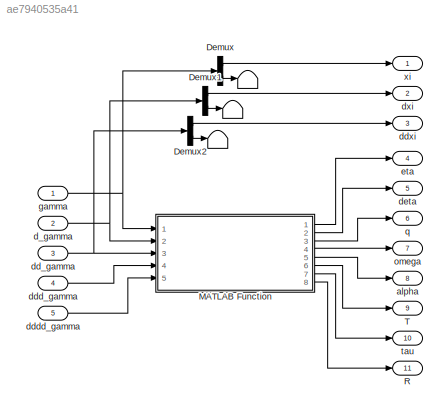
MODEL slx_ae7940535a41
KIND model
CONFIG AbsTol = auto
CONFIG FixedStep = auto
CONFIG MaxStep = auto
CONFIG MinStep = auto
CONFIG RelTol = 1e-3
CONFIG SampleTimeConstraint = Unconstrained
CONFIG Solver = VariableStepAuto
CONFIG SolverMode = Auto
CONFIG SolverName = VariableStepAuto
CONFIG StartTime = 0.0
CONFIG StopTime = 30.0
BLOCK [Terminator]  
BLOCK [Terminator]    
BLOCK [Terminator]     
BLOCK [Demux] Demux
  DisplayOption = bar
  Outputs = [3,1]
  Ports = [1, 2]
BLOCK [Demux] Demux1
  DisplayOption = bar
  Outputs = [3,1]
  Ports = [1, 2]
BLOCK [Demux] Demux2
  DisplayOption = bar
  Outputs = [3,1]
  Ports = [1, 2]
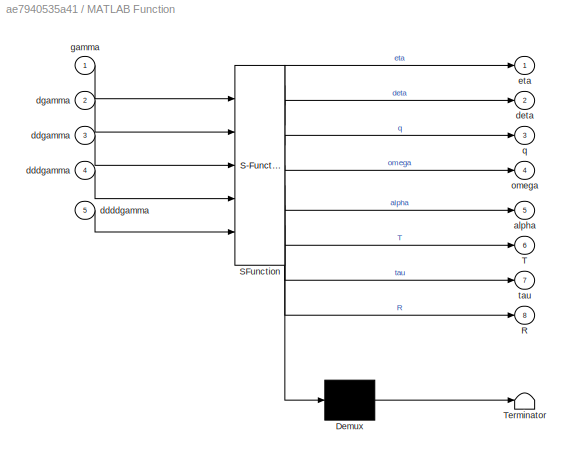
BLOCK [SubSystem] MATLAB Function
  ErrorFcn = Stateflow.Translate.translate
  PermitHierarchicalResolution = ExplicitOnly
  Ports = [5, 8]
  RequestExecContextInheritance = off
  SFBlockType = MATLAB Function
  TreatAsAtomicUnit = on
  Variant = off
BLOCK [Demux] MATLAB Function/ Demux 
  Outputs = 1
  Ports = [1, 1]
BLOCK [S-Function] MATLAB Function/ SFunction 
  EnableBusSupport = on
  FunctionName = sf_sfun
  PortCounts = [5 9]
  Ports = [5, 9]
  SFunctionDeploymentMode = off
  Tag = Stateflow S-Function flatnessGen 2
BLOCK [Terminator] MATLAB Function/ Terminator 
BLOCK [Outport] MATLAB Function/R
  IconDisplay = Port number
  Port = 8
BLOCK [Outport] MATLAB Function/T
  IconDisplay = Port number
  Port = 6
BLOCK [Outport] MATLAB Function/alpha
  IconDisplay = Port number
  Port = 5
BLOCK [Inport] MATLAB Function/ddddgamma
  IconDisplay = Port number
  Port = 5
BLOCK [Inport] MATLAB Function/dddgamma
  IconDisplay = Port number
  Port = 4
BLOCK [Inport] MATLAB Function/ddgamma
  IconDisplay = Port number
  Port = 3
BLOCK [Outport] MATLAB Function/deta
  IconDisplay = Port number
  Port = 2
BLOCK [Inport] MATLAB Function/dgamma
  IconDisplay = Port number
  Port = 2
BLOCK [Outport] MATLAB Function/eta
  IconDisplay = Port number
BLOCK [Inport] MATLAB Function/gamma
  IconDisplay = Port number
BLOCK [Outport] MATLAB Function/omega
  IconDisplay = Port number
  Port = 4
BLOCK [Outport] MATLAB Function/q
  IconDisplay = Port number
  Port = 3
BLOCK [Outport] MATLAB Function/tau
  IconDisplay = Port number
  Port = 7
BLOCK [Outport] R
  IconDisplay = Port number
  Port = 11
BLOCK [Outport] T
  IconDisplay = Port number
  Port = 9
BLOCK [Outport] alpha
  IconDisplay = Port number
  Port = 8
BLOCK [Inport] d_gamma
  IconDisplay = Port number
  Port = 2
  PortDimensions = 4
BLOCK [Inport] dd_gamma
  IconDisplay = Port number
  Port = 3
  PortDimensions = 4
BLOCK [Inport] ddd_gamma
  IconDisplay = Port number
  Port = 4
  PortDimensions = 4
BLOCK [Inport] dddd_gamma
  IconDisplay = Port number
  Port = 5
  PortDimensions = 4
BLOCK [Outport] ddxi
  IconDisplay = Port number
  Port = 3
BLOCK [Outport] deta
  IconDisplay = Port number
  Port = 5
BLOCK [Outport] dxi
  IconDisplay = Port number
  Port = 2
BLOCK [Outport] eta
  IconDisplay = Port number
  Port = 4
BLOCK [Inport] gamma
  IconDisplay = Port number
  PortDimensions = 4
BLOCK [Outport] omega
  IconDisplay = Port number
  Port = 7
BLOCK [Outport] q
  IconDisplay = Port number
  Port = 6
BLOCK [Outport] tau
  IconDisplay = Port number
  Port = 10
BLOCK [Outport] xi
  IconDisplay = Port number
LINE Demux1:1 -> dxi:1
LINE Demux1:2 ->    :1
LINE Demux2:1 -> ddxi:1
LINE Demux2:2 ->     :1
LINE Demux:1 -> xi:1
LINE Demux:2 ->  :1
LINE MATLAB Function:1 -> eta:1
LINE MATLAB Function:2 -> deta:1
LINE MATLAB Function:3 -> q:1
LINE MATLAB Function:4 -> omega:1
LINE MATLAB Function:5 -> alpha:1
LINE MATLAB Function:6 -> T:1
LINE MATLAB Function:7 -> tau:1
LINE MATLAB Function:8 -> R:1
NET d_gamma:1 -> Demux1:1, MATLAB Function:2
NET dd_gamma:1 -> Demux2:1, MATLAB Function:3
LINE ddd_gamma:1 -> MATLAB Function:4
LINE dddd_gamma:1 -> MATLAB Function:5
NET gamma:1 -> Demux:1, MATLAB Function:1
note: NET lines group one-source signal fan-out (src -> all destinations, sorted); 1:1 wires keep LINE
CHART MATLAB Function states=1 transitions=1
  STATE_LABEL 'eML_blk_kernel()'
  STATE_LABEL 'SCRIPT:\nfunction [eta, deta, q, omega, alpha, T, tau, R] = flatness(gamma, dgamma, ddgamma, dddgamma, ddddgamma)\n%#codegen\n\n% Thrust\ng = 9.81;\nm = 0.027;\nI = diag([0.1660e-4; 0.1660e-4; 0.2930e-4]);\na = ddgamma(1:3);\natilde = a + [0;0;g];\nT = m*norm(atilde);\n\n% ~~~ Angles ~~~\npsi = gamma(4);\nzb = atilde./norm(atilde);\nyc = [cos(psi+pi/2); sin(psi+pi/2); 0];\nxb = cross(yc, zb)./norm(cross(yc, zb));...<+1266ch>'
